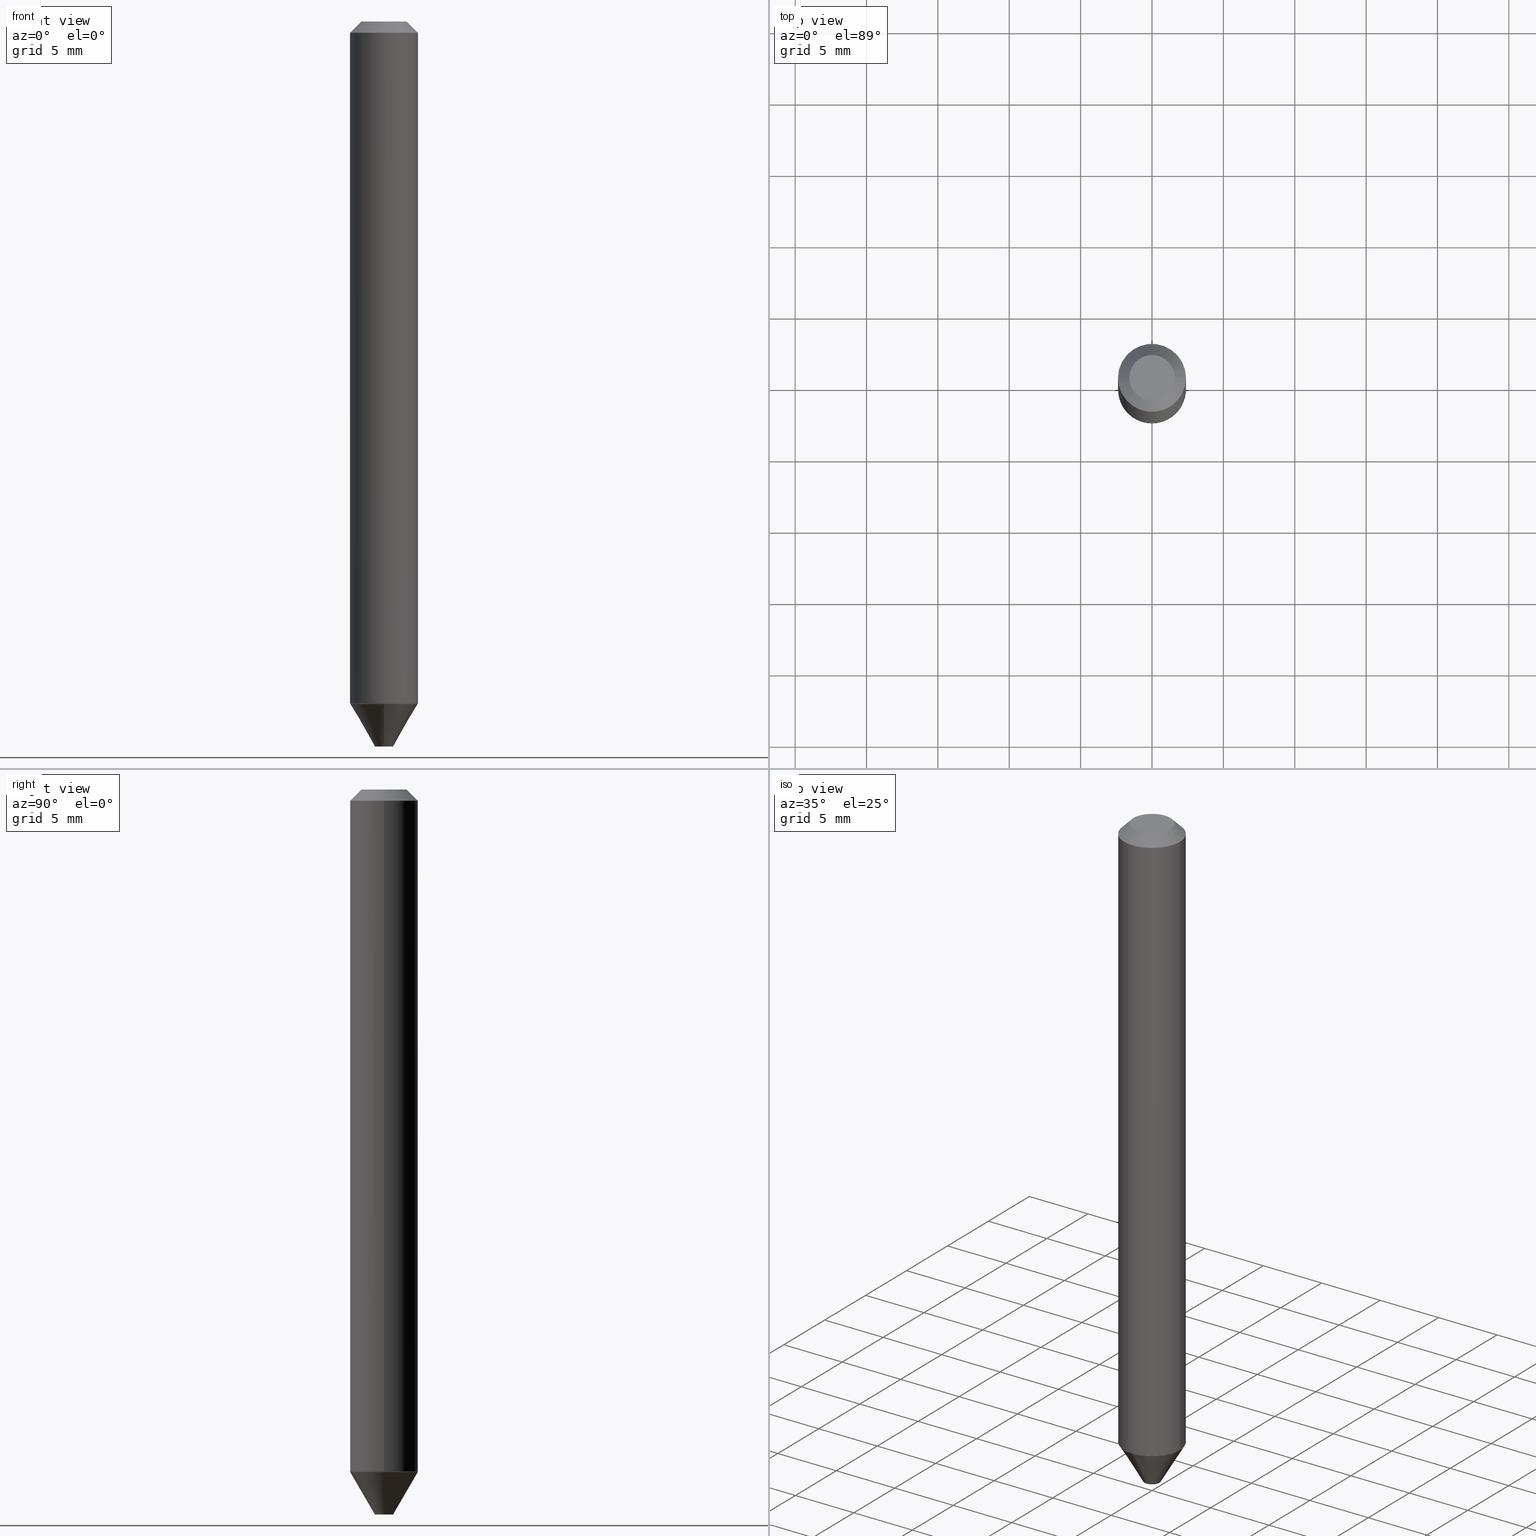
[diagram: canonical four-view strip — front | top / right | iso, engineering-drawing reading convention]
A machine part, canonical four-view strip (front | top / right | iso — engineering-drawing reading convention). The complete STEP part file that produces these views, byte-faithful:
ISO-10303-21;
HEADER;
FILE_DESCRIPTION (( 'STEP AP203' ),
    '1' );
FILE_NAME ('74028.STEP',
    '2025-06-20T12:14:24',
    ( '' ),
    ( '' ),
    'SwSTEP 2.0',
    'SolidWorks 2024',
    '' );
FILE_SCHEMA (( 'CONFIG_CONTROL_DESIGN' ));
ENDSEC;

DATA;
#1 = DIRECTION ( 'NONE',  ( 1.000000000000000000, -6.982962677686265922E-15, 4.876242311950516125E-29 ) ) ;
#2 = PLANE ( 'NONE',  #123 ) ;
#3 = DIRECTION ( 'NONE',  ( 2.445468806185136597E-29, -3.491481338843145583E-15, -1.000000000000000000 ) ) ;
#4 = AXIS2_PLACEMENT_3D ( 'NONE', #335, #190, #272 ) ;
#5 = CC_DESIGN_PERSON_AND_ORGANIZATION_ASSIGNMENT ( #21, #189, ( #392 ) ) ;
#6 = DIRECTION ( 'NONE',  ( 0.7071067811865452413, -7.319954787623248157E-15, -0.7071067811865497932 ) ) ;
#7 = ORIENTED_EDGE ( 'NONE', *, *, #80, .F. ) ;
#8 = CARTESIAN_POINT ( 'NONE',  ( 0.09375000000000001388, -7.522804791299300860E-16, -0.03125000000000020123 ) ) ;
#9 = ORIENTED_EDGE ( 'NONE', *, *, #106, .F. ) ;
#10 = ADVANCED_FACE ( 'NONE', ( #365 ), #125, .T. ) ;
#11 = ORIENTED_EDGE ( 'NONE', *, *, #120, .F. ) ;
#12 = AXIS2_PLACEMENT_3D ( 'NONE', #328, #48, #132 ) ;
#13 = APPROVAL_PERSON_ORGANIZATION ( #51, #321, #81 ) ;
#14 = APPLICATION_PROTOCOL_DEFINITION ( 'international standard', 'config_control_design', 1994, #101 ) ;
#15 = ORIENTED_EDGE ( 'NONE', *, *, #120, .T. ) ;
#16 = CARTESIAN_POINT ( 'NONE',  ( -0.09375000000000001388, 5.455439591942385021E-16, -0.03125000000000020123 ) ) ;
#17 = ORIENTED_EDGE ( 'NONE', *, *, #242, .F. ) ;
#18 = DATE_TIME_ROLE ( 'creation_date' ) ;
#19 = ORIENTED_EDGE ( 'NONE', *, *, #304, .F. ) ;
#20 = AXIS2_PLACEMENT_3D ( 'NONE', #122, #96, #252 ) ;
#21 = PERSON_AND_ORGANIZATION ( #329, #399 ) ;
#22 = AXIS2_PLACEMENT_3D ( 'NONE', #314, #93, #31 ) ;
#23 = DIRECTION ( 'NONE',  ( -2.445468806185136597E-29, 3.491481338843145583E-15, 1.000000000000000000 ) ) ;
#24 = DATE_AND_TIME ( #115, #345 ) ;
#25 = CARTESIAN_POINT ( 'NONE',  ( -0.09325000000000016609, -5.903717753847153175E-15, -1.881421506979639169 ) ) ;
#26 = EDGE_CURVE ( 'NONE', #82, #259, #405, .T. ) ;
#27 = COORDINATED_UNIVERSAL_TIME_OFFSET ( 5, 0, .BEHIND. ) ;
#28 = CARTESIAN_POINT ( 'NONE',  ( 0.06250000000000001388, -5.905308019953255522E-16, 3.827021247339070247E-18 ) ) ;
#29 = DIRECTION ( 'NONE',  ( -2.445468806185136597E-29, 3.491481338843145583E-15, 1.000000000000000000 ) ) ;
#30 = DIRECTION ( 'NONE',  ( 2.450229196497135613E-29, -3.484664188971772409E-15, -1.000000000000000000 ) ) ;
#31 = DIRECTION ( 'NONE',  ( 6.982962677686266711E-15, 1.000000000000000000, -2.913971193241879189E-15 ) ) ;
#32 = FACE_OUTER_BOUND ( 'NONE', #290, .T. ) ;
#33 = AXIS2_PLACEMENT_3D ( 'NONE', #131, #380, #230 ) ;
#34 = CARTESIAN_POINT ( 'NONE',  ( 4.602182721202787017E-29, -6.570690414212044123E-15, -1.881921506979639114 ) ) ;
#35 = PRODUCT_DEFINITION ( 'UNKNOWN', '', #124, #45 ) ;
#36 = CARTESIAN_POINT ( 'NONE',  ( 6.546527510331342441E-16, 0.09374999999999353295, -1.881921506979639336 ) ) ;
#37 = LENGTH_MEASURE_WITH_UNIT ( LENGTH_MEASURE( 0.02539999999999999897 ), #202 );
#38 = EDGE_LOOP ( 'NONE', ( #77, #49, #338, #100 ) ) ;
#39 = CLOSED_SHELL ( 'NONE', ( #378, #283, #297, #412, #219, #10 ) ) ;
#40 = CONICAL_SURFACE ( 'NONE', #33, 0.09375000000000001388, 0.7853981633974450594 ) ;
#41 = ADVANCED_FACE ( 'NONE', ( #410 ), #88, .T. ) ;
#42 = EDGE_LOOP ( 'NONE', ( #19, #360, #75, #89 ) ) ;
#43 = DIRECTION ( 'NONE',  ( 1.000000000000000000, -6.982962677686265922E-15, 4.876242311950516125E-29 ) ) ;
#44 = ORIENTED_EDGE ( 'NONE', *, *, #224, .T. ) ;
#45 = DESIGN_CONTEXT ( 'detailed design', #381, 'design' ) ;
#46 = PLANE ( 'NONE',  #72 ) ;
#47 = VERTEX_POINT ( 'NONE', #25 ) ;
#48 = DIRECTION ( 'NONE',  ( -2.450229196497135893E-29, 3.484664188971772015E-15, 1.000000000000000000 ) ) ;
#49 = ORIENTED_EDGE ( 'NONE', *, *, #372, .T. ) ;
#50 = ADVANCED_FACE ( 'NONE', ( #54 ), #390, .T. ) ;
#51 = PERSON_AND_ORGANIZATION ( #329, #399 ) ;
#52 = EDGE_LOOP ( 'NONE', ( #241, #299, #109, #222 ) ) ;
#53 = MECHANICAL_CONTEXT ( 'NONE', #101, 'mechanical' ) ;
#54 = FACE_OUTER_BOUND ( 'NONE', #393, .T. ) ;
#55 = AXIS2_PLACEMENT_3D ( 'NONE', #413, #199, #158 ) ;
#56 = LOCAL_TIME ( 8, 14, 24.00000000000000000, #27 ) ;
#57 = VECTOR ( 'NONE', #104, 39.37007874015748143 ) ;
#58 = CARTESIAN_POINT ( 'NONE',  ( -6.546527510330419474E-16, -0.09375000000000663358, -1.881921506979638670 ) ) ;
#59 = DIRECTION ( 'NONE',  ( -1.000000000000000000, 6.982962677686265922E-15, -4.876176775795935793E-29 ) ) ;
#60 = PERSON_AND_ORGANIZATION ( #329, #399 ) ;
#61 = ORIENTED_EDGE ( 'NONE', *, *, #211, .T. ) ;
#62 = APPROVAL_PERSON_ORGANIZATION ( #212, #265, #366 ) ;
#63 = CARTESIAN_POINT ( 'NONE',  ( 6.511612696942904481E-16, 0.09324999999999344924, -1.881421506979639169 ) ) ;
#64 = VECTOR ( 'NONE', #6, 39.37007874015748143 ) ;
#65 = DIRECTION ( 'NONE',  ( -6.982962677686265922E-15, -1.000000000000000000, 3.484664188971772015E-15 ) ) ;
#66 = CARTESIAN_POINT ( 'NONE',  ( 0.09375000000000011102, -6.546527510330881944E-16, 4.571415727308695411E-30 ) ) ;
#67 = CARTESIAN_POINT ( 'NONE',  ( -9.358861080966648015E-47, 1.336197326842804765E-32, 3.827021247335480313E-18 ) ) ;
#68 = AXIS2_PLACEMENT_3D ( 'NONE', #407, #157, #121 ) ;
#69 = CARTESIAN_POINT ( 'NONE',  ( 4.599734872201446388E-29, -6.567202341448137476E-15, -1.880921506979639224 ) ) ;
#70 = EDGE_CURVE ( 'NONE', #176, #341, #127, .T. ) ;
#71 =( NAMED_UNIT ( * ) PLANE_ANGLE_UNIT ( ) SI_UNIT ( $, .RADIAN. ) );
#72 = AXIS2_PLACEMENT_3D ( 'NONE', #78, #261, #170 ) ;
#73 = VERTEX_POINT ( 'NONE', #28 ) ;
#74 = AXIS2_PLACEMENT_3D ( 'NONE', #348, #3, #313 ) ;
#75 = ORIENTED_EDGE ( 'NONE', *, *, #276, .T. ) ;
#76 = CARTESIAN_POINT ( 'NONE',  ( -0.09375000000000011102, 6.661338147750947131E-16, -4.611501647113979600E-30 ) ) ;
#77 = ORIENTED_EDGE ( 'NONE', *, *, #106, .T. ) ;
#78 = CARTESIAN_POINT ( 'NONE',  ( -4.679430540483324007E-47, 6.680986634214023823E-33, 1.913510623667740157E-18 ) ) ;
#79 = ORIENTED_EDGE ( 'NONE', *, *, #333, .F. ) ;
#80 = EDGE_CURVE ( 'NONE', #47, #240, #248, .T. ) ;
#81 = APPROVAL_ROLE ( '' ) ;
#82 = VERTEX_POINT ( 'NONE', #150 ) ;
#83 = DIRECTION ( 'NONE',  ( 2.450229196497135613E-29, -3.484664188971772409E-15, -1.000000000000000000 ) ) ;
#84 = PERSON_AND_ORGANIZATION ( #329, #399 ) ;
#85 = ORIENTED_EDGE ( 'NONE', *, *, #372, .F. ) ;
#86 = CIRCLE ( 'NONE', #235, 0.09325000000000016609 ) ;
#87 = COORDINATED_UNIVERSAL_TIME_OFFSET ( 5, 0, .BEHIND. ) ;
#88 = CYLINDRICAL_SURFACE ( 'NONE', #148, 0.09375000000000011102 ) ;
#89 = ORIENTED_EDGE ( 'NONE', *, *, #224, .F. ) ;
#90 = EDGE_LOOP ( 'NONE', ( #395, #61, #213, #277 ) ) ;
#91 = DIRECTION ( 'NONE',  ( 2.450229196497135613E-29, -3.484664188971772409E-15, -1.000000000000000000 ) ) ;
#92 = VECTOR ( 'NONE', #126, 39.37007874015748143 ) ;
#93 = DIRECTION ( 'NONE',  ( 2.450229196497135613E-29, -3.484664188971772409E-15, -1.000000000000000000 ) ) ;
#94 = EDGE_CURVE ( 'NONE', #143, #262, #206, .T. ) ;
#95 = FACE_OUTER_BOUND ( 'NONE', #52, .T. ) ;
#96 = DIRECTION ( 'NONE',  ( -2.445468806185136597E-29, 3.491481338843145583E-15, 1.000000000000000000 ) ) ;
#97 = LOCAL_TIME ( 8, 14, 24.00000000000000000, #156 ) ;
#98 = DIRECTION ( 'NONE',  ( 2.450229196497135613E-29, -3.484664188971772409E-15, -1.000000000000000000 ) ) ;
#99 = CARTESIAN_POINT ( 'NONE',  ( 4.891502092279659447E-29, -6.982154310327850672E-15, -2.000000000000000444 ) ) ;
#100 = ORIENTED_EDGE ( 'NONE', *, *, #114, .F. ) ;
#101 = APPLICATION_CONTEXT ( 'configuration controlled 3d designs of mechanical parts and assemblies' ) ;
#102 = PLANE ( 'NONE',  #12 ) ;
#103 = CIRCLE ( 'NONE', #22, 0.09375000000000005551 ) ;
#104 = DIRECTION ( 'NONE',  ( -0.7071067811866561525, 7.493145998870747013E-15, 0.7071067811864388819 ) ) ;
#105 = ORIENTED_EDGE ( 'NONE', *, *, #327, .F. ) ;
#106 = EDGE_CURVE ( 'NONE', #240, #47, #86, .T. ) ;
#107 = CARTESIAN_POINT ( 'NONE',  ( -0.09375000000000020817, -5.901068526673041974E-15, -1.880921506979639224 ) ) ;
#108 = APPROVAL_DATE_TIME ( #24, #155 ) ;
#109 = ORIENTED_EDGE ( 'NONE', *, *, #193, .F. ) ;
#110 = CIRCLE ( 'NONE', #356, 0.06250000000000001388 ) ;
#111 = AXIS2_PLACEMENT_3D ( 'NONE', #274, #83, #275 ) ;
#112 = CALENDAR_DATE ( 2025, 20, 6 ) ;
#113 = DIRECTION ( 'NONE',  ( -2.445468806185136597E-29, 3.491481338843145583E-15, 1.000000000000000000 ) ) ;
#114 = EDGE_CURVE ( 'NONE', #240, #262, #220, .T. ) ;
#115 = CALENDAR_DATE ( 2025, 20, 6 ) ;
#116 = DIRECTION ( 'NONE',  ( 1.000000000000000000, -6.982962677686265922E-15, 0.000000000000000000 ) ) ;
#117 = CARTESIAN_POINT ( 'NONE',  ( 7.642090019328600035E-31, -1.091087918388489897E-16, -0.03125000000000020123 ) ) ;
#118 = APPROVAL_PERSON_ORGANIZATION ( #216, #155, #404 ) ;
#119 = ORIENTED_EDGE ( 'NONE', *, *, #287, .F. ) ;
#120 = EDGE_CURVE ( 'NONE', #332, #146, #225, .T. ) ;
#121 = DIRECTION ( 'NONE',  ( 1.000000000000000000, -6.982962677686265922E-15, 0.000000000000000000 ) ) ;
#122 = CARTESIAN_POINT ( 'NONE',  ( 4.599734872201446388E-29, -6.567202341448137476E-15, -1.880921506979639224 ) ) ;
#123 = AXIS2_PLACEMENT_3D ( 'NONE', #129, #257, #65 ) ;
#124 = PRODUCT_DEFINITION_FORMATION_WITH_SPECIFIED_SOURCE ( 'ANY', '', #406, .NOT_KNOWN. ) ;
#125 = CONICAL_SURFACE ( 'NONE', #4, 0.09375000000000005551, 0.5272581712179652547 ) ;
#126 = DIRECTION ( 'NONE',  ( -4.851104656540301632E-15, -0.7071067811864534258, -0.7071067811866416086 ) ) ;
#127 = CIRCLE ( 'NONE', #111, 0.09325000000000002731 ) ;
#128 = FACE_OUTER_BOUND ( 'NONE', #38, .T. ) ;
#129 = CARTESIAN_POINT ( 'NONE',  ( 4.890937612370273194E-29, -6.982962677686291165E-15, -2.000000000000000000 ) ) ;
#130 = ADVANCED_FACE ( 'NONE', ( #409 ), #250, .T. ) ;
#131 = CARTESIAN_POINT ( 'NONE',  ( 7.642090019328600035E-31, -1.091087918388489897E-16, -0.03125000000000020123 ) ) ;
#132 = DIRECTION ( 'NONE',  ( -6.982962677686265922E-15, -1.000000000000000000, 3.484664188971772015E-15 ) ) ;
#133 = CC_DESIGN_PERSON_AND_ORGANIZATION_ASSIGNMENT ( #153, #331, ( #124 ) ) ;
#134 = ORIENTED_EDGE ( 'NONE', *, *, #172, .T. ) ;
#135 = FACE_OUTER_BOUND ( 'NONE', #233, .T. ) ;
#136 = ORIENTED_EDGE ( 'NONE', *, *, #260, .T. ) ;
#137 = AXIS2_PLACEMENT_3D ( 'NONE', #264, #98, #324 ) ;
#138 = EDGE_LOOP ( 'NONE', ( #9, #7 ) ) ;
#139 = ADVANCED_FACE ( 'NONE', ( #187 ), #278, .T. ) ;
#140 = DIRECTION ( 'NONE',  ( -2.445468806185136597E-29, 3.491481338843145583E-15, 1.000000000000000000 ) ) ;
#141 = ORIENTED_EDGE ( 'NONE', *, *, #364, .T. ) ;
#142 = CARTESIAN_POINT ( 'NONE',  ( 4.218847493576065508E-16, 0.02499999999999288555, -2.000000000000000444 ) ) ;
#143 = VERTEX_POINT ( 'NONE', #164 ) ;
#144 = CALENDAR_DATE ( 2025, 20, 6 ) ;
#145 = EDGE_CURVE ( 'NONE', #341, #259, #194, .T. ) ;
#146 = VERTEX_POINT ( 'NONE', #229 ) ;
#147 = AXIS2_PLACEMENT_3D ( 'NONE', #339, #308, #59 ) ;
#148 = AXIS2_PLACEMENT_3D ( 'NONE', #306, #29, #402 ) ;
#149 = DATE_AND_TIME ( #112, #311 ) ;
#150 = CARTESIAN_POINT ( 'NONE',  ( -4.146134089875742612E-16, -0.02500000000000685355, -2.000000000000000444 ) ) ;
#151 = DATE_AND_TIME ( #144, #97 ) ;
#152 = ORIENTED_EDGE ( 'NONE', *, *, #304, .T. ) ;
#153 = PERSON_AND_ORGANIZATION ( #329, #399 ) ;
#154 = DIRECTION ( 'NONE',  ( 0.7071067811866561525, -2.468850131083394598E-15, 0.7071067811864388819 ) ) ;
#155 = APPROVAL ( #334, 'UNSPECIFIED' ) ;
#156 = COORDINATED_UNIVERSAL_TIME_OFFSET ( 5, 0, .BEHIND. ) ;
#157 = DIRECTION ( 'NONE',  ( -2.445468806185136597E-29, 3.491481338843145583E-15, 1.000000000000000000 ) ) ;
#158 = DIRECTION ( 'NONE',  ( 1.000000000000000000, -6.982962677686265922E-15, 4.876176775795935793E-29 ) ) ;
#159 = DIRECTION ( 'NONE',  ( 1.000000000000000000, -6.982962677686268288E-15, 0.000000000000000000 ) ) ;
#160 = EDGE_CURVE ( 'NONE', #323, #82, #401, .T. ) ;
#161 = CONICAL_SURFACE ( 'NONE', #137, 0.09325000000000002731, 0.7853981633973118326 ) ;
#162 =( GEOMETRIC_REPRESENTATION_CONTEXT ( 3 ) GLOBAL_UNCERTAINTY_ASSIGNED_CONTEXT ( ( #352 ) ) GLOBAL_UNIT_ASSIGNED_CONTEXT ( ( #167, #71, #357 ) ) REPRESENTATION_CONTEXT ( 'NONE', 'WORKASPACE' ) );
#163 = DIRECTION ( 'NONE',  ( -2.445468806185136877E-29, 3.491481338843145188E-15, 1.000000000000000000 ) ) ;
#164 = CARTESIAN_POINT ( 'NONE',  ( -0.09375000000000020817, -5.901068526673041974E-15, -1.880921506979639224 ) ) ;
#165 = CARTESIAN_POINT ( 'NONE',  ( 0.09375000000000020817, -7.221855092481226558E-15, -1.880921506979639224 ) ) ;
#166 = VECTOR ( 'NONE', #347, 39.37007874015747433 ) ;
#167 =( CONVERSION_BASED_UNIT ( 'INCH', #37 ) LENGTH_UNIT ( ) NAMED_UNIT ( #173 ) );
#168 = CC_DESIGN_APPROVAL ( #321, ( #392 ) ) ;
#169 = DIRECTION ( 'NONE',  ( -2.445468806185136877E-29, 3.491481338843145188E-15, 1.000000000000000000 ) ) ;
#170 = DIRECTION ( 'NONE',  ( -1.000000000000000000, 6.982962677686265922E-15, -4.876176775795935793E-29 ) ) ;
#171 = ORIENTED_EDGE ( 'NONE', *, *, #188, .T. ) ;
#172 = EDGE_CURVE ( 'NONE', #180, #73, #344, .T. ) ;
#173 = DIMENSIONAL_EXPONENTS ( 1.000000000000000000, 0.000000000000000000, 0.000000000000000000, 0.000000000000000000, 0.000000000000000000, 0.000000000000000000, 0.000000000000000000 ) ;
#174 = CARTESIAN_POINT ( 'NONE',  ( -6.414565627915923777E-16, -0.09325000000000659151, -1.881421506979638503 ) ) ;
#175 = LOCAL_TIME ( 8, 14, 24.00000000000000000, #214 ) ;
#176 = VERTEX_POINT ( 'NONE', #63 ) ;
#177 = EDGE_LOOP ( 'NONE', ( #292, #136, #353, #17 ) ) ;
#178 = APPROVAL_DATE_TIME ( #149, #321 ) ;
#179 = ORIENTED_EDGE ( 'NONE', *, *, #260, .F. ) ;
#180 = VERTEX_POINT ( 'NONE', #317 ) ;
#181 = AXIS2_PLACEMENT_3D ( 'NONE', #117, #367, #370 ) ;
#182 = AXIS2_PLACEMENT_3D ( 'NONE', #263, #238, #245 ) ;
#183 = CIRCLE ( 'NONE', #294, 0.09375000000000001388 ) ;
#184 = CALENDAR_DATE ( 2025, 20, 6 ) ;
#185 = EDGE_LOOP ( 'NONE', ( #134, #363 ) ) ;
#186 = DATE_AND_TIME ( #184, #56 ) ;
#187 = FACE_OUTER_BOUND ( 'NONE', #205, .T. ) ;
#188 = EDGE_CURVE ( 'NONE', #262, #143, #377, .T. ) ;
#189 = PERSON_AND_ORGANIZATION_ROLE ( 'classification_officer' ) ;
#190 = DIRECTION ( 'NONE',  ( -2.450229196497135613E-29, 3.484664188971772409E-15, 1.000000000000000000 ) ) ;
#191 = CLOSED_SHELL ( 'NONE', ( #273, #139, #256, #130, #50, #41, #234, #359 ) ) ;
#192 = DIRECTION ( 'NONE',  ( -2.445468806185136597E-29, 3.491481338843145583E-15, 1.000000000000000000 ) ) ;
#193 = EDGE_CURVE ( 'NONE', #269, #259, #280, .T. ) ;
#194 = LINE ( 'NONE', #226, #92 ) ;
#195 = MANIFOLD_SOLID_BREP ( 'Body-Move/Copy2[1]', #39 ) ;
#196 = CARTESIAN_POINT ( 'NONE',  ( 4.891502092279659447E-29, -6.982154310327850672E-15, -2.000000000000000444 ) ) ;
#197 = MANIFOLD_SOLID_BREP ( 'Body-Move/Copy2[2]', #191 ) ;
#198 = CONICAL_SURFACE ( 'NONE', #253, 0.09375000000000020817, 0.7853981633976019339 ) ;
#199 = DIRECTION ( 'NONE',  ( -2.445468806185136597E-29, 3.491481338843145583E-15, 1.000000000000000000 ) ) ;
#200 = ADVANCED_BREP_SHAPE_REPRESENTATION ( '74028', ( #195, #197, #182 ), #162 ) ;
#201 = FACE_OUTER_BOUND ( 'NONE', #397, .T. ) ;
#202 =( LENGTH_UNIT ( ) NAMED_UNIT ( * ) SI_UNIT ( $, .METRE. ) );
#203 = AXIS2_PLACEMENT_3D ( 'NONE', #343, #376, #1 ) ;
#204 = LINE ( 'NONE', #8, #64 ) ;
#205 = EDGE_LOOP ( 'NONE', ( #171, #152, #11, #210 ) ) ;
#206 = CIRCLE ( 'NONE', #286, 0.09375000000000020817 ) ;
#207 = CARTESIAN_POINT ( 'NONE',  ( 0.09375000000000001388, -7.637615428719365062E-16, -0.03125000000000020123 ) ) ;
#208 = ORIENTED_EDGE ( 'NONE', *, *, #242, .T. ) ;
#209 = DIRECTION ( 'NONE',  ( -6.982962677686266711E-15, -1.000000000000000000, 2.913971193241879189E-15 ) ) ;
#210 = ORIENTED_EDGE ( 'NONE', *, *, #276, .F. ) ;
#211 = EDGE_CURVE ( 'NONE', #323, #269, #315, .T. ) ;
#212 = PERSON_AND_ORGANIZATION ( #329, #399 ) ;
#213 = ORIENTED_EDGE ( 'NONE', *, *, #193, .T. ) ;
#214 = COORDINATED_UNIVERSAL_TIME_OFFSET ( 5, 0, .BEHIND. ) ;
#215 = CARTESIAN_POINT ( 'NONE',  ( 4.599734872201446388E-29, -6.567202341448137476E-15, -1.880921506979639224 ) ) ;
#216 = PERSON_AND_ORGANIZATION ( #329, #399 ) ;
#217 = ORIENTED_EDGE ( 'NONE', *, *, #70, .F. ) ;
#218 = AXIS2_PLACEMENT_3D ( 'NONE', #34, #91, #279 ) ;
#219 = ADVANCED_FACE ( 'NONE', ( #32 ), #2, .F. ) ;
#220 = LINE ( 'NONE', #246, #322 ) ;
#221 = PERSON_AND_ORGANIZATION_ROLE ( 'creator' ) ;
#222 = ORIENTED_EDGE ( 'NONE', *, *, #391, .F. ) ;
#223 = LINE ( 'NONE', #66, #369 ) ;
#224 = EDGE_CURVE ( 'NONE', #146, #332, #183, .T. ) ;
#225 = CIRCLE ( 'NONE', #181, 0.09375000000000001388 ) ;
#226 = CARTESIAN_POINT ( 'NONE',  ( -6.397414382921493268E-16, -0.09325000000000659151, -1.881421506979638503 ) ) ;
#227 = PRODUCT_DEFINITION_SHAPE ( 'NONE', 'NONE',  #35 ) ;
#228 = CARTESIAN_POINT ( 'NONE',  ( 4.600957606604537508E-29, -6.568948082117558191E-15, -1.881421506979638947 ) ) ;
#229 = CARTESIAN_POINT ( 'NONE',  ( -0.09375000000000001388, -2.672021751868397392E-15, -0.03125000000000020123 ) ) ;
#230 = DIRECTION ( 'NONE',  ( -1.000000000000000000, 6.982962677686265922E-15, 0.000000000000000000 ) ) ;
#231 = CC_DESIGN_PERSON_AND_ORGANIZATION_ASSIGNMENT ( #368, #221, ( #35 ) ) ;
#232 = LINE ( 'NONE', #351, #354 ) ;
#233 = EDGE_LOOP ( 'NONE', ( #217, #179 ) ) ;
#234 = ADVANCED_FACE ( 'NONE', ( #201 ), #40, .T. ) ;
#235 = AXIS2_PLACEMENT_3D ( 'NONE', #305, #23, #116 ) ;
#236 = ORIENTED_EDGE ( 'NONE', *, *, #114, .T. ) ;
#237 = VECTOR ( 'NONE', #394, 39.37007874015748143 ) ;
#238 = DIRECTION ( 'NONE',  ( 0.000000000000000000, 0.000000000000000000, 1.000000000000000000 ) ) ;
#239 = DIRECTION ( 'NONE',  ( 4.937700262163873566E-15, 0.7071067811864485408, -0.7071067811866464936 ) ) ;
#240 = VERTEX_POINT ( 'NONE', #349 ) ;
#241 = ORIENTED_EDGE ( 'NONE', *, *, #70, .T. ) ;
#242 = EDGE_CURVE ( 'NONE', #259, #269, #103, .T. ) ;
#243 = APPROVAL_STATUS ( 'not_yet_approved' ) ;
#244 = DIRECTION ( 'NONE',  ( -2.445468806185136597E-29, 3.491481338843145583E-15, 1.000000000000000000 ) ) ;
#245 = DIRECTION ( 'NONE',  ( 1.000000000000000000, 0.000000000000000000, 0.000000000000000000 ) ) ;
#246 = CARTESIAN_POINT ( 'NONE',  ( 0.09375000000000020817, -7.221855092481226558E-15, -1.880921506979639224 ) ) ;
#247 = DIRECTION ( 'NONE',  ( 1.000000000000000000, -6.982962677686268288E-15, 0.000000000000000000 ) ) ;
#248 = CIRCLE ( 'NONE', #68, 0.09325000000000016609 ) ;
#249 = PERSON_AND_ORGANIZATION_ROLE ( 'design_owner' ) ;
#250 = PLANE ( 'NONE',  #147 ) ;
#251 = DIRECTION ( 'NONE',  ( 1.000000000000000000, -6.982962677686268288E-15, 0.000000000000000000 ) ) ;
#252 = DIRECTION ( 'NONE',  ( 1.000000000000000000, -6.982962677686268288E-15, 0.000000000000000000 ) ) ;
#253 = AXIS2_PLACEMENT_3D ( 'NONE', #69, #384, #159 ) ;
#254 = CARTESIAN_POINT ( 'NONE',  ( -6.431716872910350342E-16, -0.09375000000000657807, -1.881921506979638670 ) ) ;
#255 = DIRECTION ( 'NONE',  ( 2.450229196497135613E-29, -3.484664188971772409E-15, -1.000000000000000000 ) ) ;
#256 = ADVANCED_FACE ( 'NONE', ( #128 ), #198, .T. ) ;
#257 = DIRECTION ( 'NONE',  ( -2.450229196497135893E-29, 3.484664188971772015E-15, 1.000000000000000000 ) ) ;
#258 = DIRECTION ( 'NONE',  ( 6.982962677686265922E-15, 1.000000000000000000, -2.929595703661407273E-15 ) ) ;
#259 = VERTEX_POINT ( 'NONE', #254 ) ;
#260 = EDGE_CURVE ( 'NONE', #341, #176, #320, .T. ) ;
#261 = DIRECTION ( 'NONE',  ( 2.438088387897960049E-29, -3.491481338843145188E-15, -1.000000000000000000 ) ) ;
#262 = VERTEX_POINT ( 'NONE', #165 ) ;
#263 = CARTESIAN_POINT ( 'NONE',  ( 0.000000000000000000, 0.000000000000000000, 0.000000000000000000 ) ) ;
#264 = CARTESIAN_POINT ( 'NONE',  ( 4.600957606604537508E-29, -6.568948082117558191E-15, -1.881421506979638947 ) ) ;
#265 = APPROVAL ( #371, 'UNSPECIFIED' ) ;
#266 = FACE_OUTER_BOUND ( 'NONE', #90, .T. ) ;
#267 = ORIENTED_EDGE ( 'NONE', *, *, #333, .T. ) ;
#268 = CONICAL_SURFACE ( 'NONE', #303, 0.09375000000000005551, 0.5272581712179652547 ) ;
#269 = VERTEX_POINT ( 'NONE', #36 ) ;
#270 = AXIS2_PLACEMENT_3D ( 'NONE', #282, #255, #382 ) ;
#271 = CALENDAR_DATE ( 2025, 20, 6 ) ;
#272 = DIRECTION ( 'NONE',  ( -6.982962677686266711E-15, -1.000000000000000000, 2.913971193241879189E-15 ) ) ;
#273 = ADVANCED_FACE ( 'NONE', ( #285 ), #316, .T. ) ;
#274 = CARTESIAN_POINT ( 'NONE',  ( 4.600957606604537508E-29, -6.568948082117558191E-15, -1.881421506979638947 ) ) ;
#275 = DIRECTION ( 'NONE',  ( 6.982962677686265922E-15, 1.000000000000000000, -2.929595703661407273E-15 ) ) ;
#276 = EDGE_CURVE ( 'NONE', #262, #332, #223, .T. ) ;
#277 = ORIENTED_EDGE ( 'NONE', *, *, #26, .F. ) ;
#278 = CYLINDRICAL_SURFACE ( 'NONE', #55, 0.09375000000000011102 ) ;
#279 = DIRECTION ( 'NONE',  ( 6.982962677686266711E-15, 1.000000000000000000, -2.913971193241879189E-15 ) ) ;
#280 = CIRCLE ( 'NONE', #218, 0.09375000000000005551 ) ;
#281 = CC_DESIGN_APPROVAL ( #155, ( #124 ) ) ;
#282 = CARTESIAN_POINT ( 'NONE',  ( 4.600957606604537508E-29, -6.568948082117558191E-15, -1.881421506979638947 ) ) ;
#283 = ADVANCED_FACE ( 'NONE', ( #95 ), #398, .T. ) ;
#284 = CARTESIAN_POINT ( 'NONE',  ( 6.661338147751401712E-16, 0.09374999999999349132, -1.881921506979639336 ) ) ;
#285 = FACE_OUTER_BOUND ( 'NONE', #362, .T. ) ;
#286 = AXIS2_PLACEMENT_3D ( 'NONE', #215, #113, #251 ) ;
#287 = EDGE_CURVE ( 'NONE', #73, #180, #110, .T. ) ;
#288 = AXIS2_PLACEMENT_3D ( 'NONE', #228, #318, #258 ) ;
#289 = LINE ( 'NONE', #76, #416 ) ;
#290 = EDGE_LOOP ( 'NONE', ( #267, #374 ) ) ;
#291 = FACE_OUTER_BOUND ( 'NONE', #185, .T. ) ;
#292 = ORIENTED_EDGE ( 'NONE', *, *, #145, .F. ) ;
#293 = ORIENTED_EDGE ( 'NONE', *, *, #327, .T. ) ;
#294 = AXIS2_PLACEMENT_3D ( 'NONE', #350, #192, #383 ) ;
#295 = LINE ( 'NONE', #107, #57 ) ;
#296 = EDGE_LOOP ( 'NONE', ( #310, #79, #330, #208 ) ) ;
#297 = ADVANCED_FACE ( 'NONE', ( #386 ), #161, .T. ) ;
#298 = LINE ( 'NONE', #16, #237 ) ;
#299 = ORIENTED_EDGE ( 'NONE', *, *, #145, .T. ) ;
#300 = APPLICATION_PROTOCOL_DEFINITION ( 'international standard', 'config_control_design', 1994, #381 ) ;
#301 = DIRECTION ( 'NONE',  ( -3.513587825459242834E-15, -0.5031657747057287633, 0.8641899115152779087 ) ) ;
#302 = SECURITY_CLASSIFICATION_LEVEL ( 'unclassified' ) ;
#303 = AXIS2_PLACEMENT_3D ( 'NONE', #319, #388, #209 ) ;
#304 = EDGE_CURVE ( 'NONE', #143, #146, #289, .T. ) ;
#305 = CARTESIAN_POINT ( 'NONE',  ( 4.600957606604538629E-29, -6.568948082117558979E-15, -1.881421506979639169 ) ) ;
#306 = CARTESIAN_POINT ( 'NONE',  ( 0.000000000000000000, 0.000000000000000000, 0.000000000000000000 ) ) ;
#307 = DATE_AND_TIME ( #271, #175 ) ;
#308 = DIRECTION ( 'NONE',  ( 2.438088387897960049E-29, -3.491481338843145188E-15, -1.000000000000000000 ) ) ;
#309 = DATE_TIME_ROLE ( 'classification_date' ) ;
#310 = ORIENTED_EDGE ( 'NONE', *, *, #211, .F. ) ;
#311 = LOCAL_TIME ( 8, 14, 24.00000000000000000, #87 ) ;
#312 = CC_DESIGN_PERSON_AND_ORGANIZATION_ASSIGNMENT ( #60, #336, ( #124 ) ) ;
#313 = DIRECTION ( 'NONE',  ( -1.000000000000000000, 6.982962677686265922E-15, 0.000000000000000000 ) ) ;
#314 = CARTESIAN_POINT ( 'NONE',  ( 4.602182721202787017E-29, -6.570690414212044123E-15, -1.881921506979639114 ) ) ;
#315 = LINE ( 'NONE', #284, #166 ) ;
#316 = CONICAL_SURFACE ( 'NONE', #74, 0.09375000000000001388, 0.7853981633974450594 ) ;
#317 = CARTESIAN_POINT ( 'NONE',  ( -0.06250000000000001388, 4.909895632748152337E-16, 3.827021247332237047E-18 ) ) ;
#318 = DIRECTION ( 'NONE',  ( 2.450229196497135613E-29, -3.484664188971772409E-15, -1.000000000000000000 ) ) ;
#319 = CARTESIAN_POINT ( 'NONE',  ( 4.602182721202787017E-29, -6.570690414212044123E-15, -1.881921506979639114 ) ) ;
#320 = CIRCLE ( 'NONE', #288, 0.09325000000000002731 ) ;
#321 = APPROVAL ( #243, 'UNSPECIFIED' ) ;
#322 = VECTOR ( 'NONE', #154, 39.37007874015748143 ) ;
#323 = VERTEX_POINT ( 'NONE', #142 ) ;
#324 = DIRECTION ( 'NONE',  ( 6.982962677686265922E-15, 1.000000000000000000, -2.929595703661407273E-15 ) ) ;
#325 = DIRECTION ( 'NONE',  ( 2.450229196497135613E-29, -3.484664188971772409E-15, -1.000000000000000000 ) ) ;
#326 = ORIENTED_EDGE ( 'NONE', *, *, #80, .T. ) ;
#327 = EDGE_CURVE ( 'NONE', #180, #146, #298, .T. ) ;
#328 = CARTESIAN_POINT ( 'NONE',  ( 4.600957606604538629E-29, -6.568948082117558979E-15, -1.881421506979639169 ) ) ;
#329 = PERSON ( 'UNSPECIFIED', 'UNSPECIFIED', 'UNSPECIFIED', ('UNSPECIFIED'), ('UNSPECIFIED'), ('UNSPECIFIED') ) ;
#330 = ORIENTED_EDGE ( 'NONE', *, *, #26, .T. ) ;
#331 = PERSON_AND_ORGANIZATION_ROLE ( 'design_supplier' ) ;
#332 = VERTEX_POINT ( 'NONE', #207 ) ;
#333 = EDGE_CURVE ( 'NONE', #82, #323, #337, .T. ) ;
#334 = APPROVAL_STATUS ( 'not_yet_approved' ) ;
#335 = CARTESIAN_POINT ( 'NONE',  ( 4.602182721202787017E-29, -6.570690414212044123E-15, -1.881921506979639114 ) ) ;
#336 = PERSON_AND_ORGANIZATION_ROLE ( 'creator' ) ;
#337 = CIRCLE ( 'NONE', #346, 0.02499999999999986955 ) ;
#338 = ORIENTED_EDGE ( 'NONE', *, *, #188, .F. ) ;
#339 = CARTESIAN_POINT ( 'NONE',  ( 4.600957606604538629E-29, -6.568948082117558979E-15, -1.881421506979639169 ) ) ;
#340 = COORDINATED_UNIVERSAL_TIME_OFFSET ( 5, 0, .BEHIND. ) ;
#341 = VERTEX_POINT ( 'NONE', #174 ) ;
#342 = CC_DESIGN_PERSON_AND_ORGANIZATION_ASSIGNMENT ( #84, #249, ( #406 ) ) ;
#343 = CARTESIAN_POINT ( 'NONE',  ( -9.358861080966648015E-47, 1.336197326842804765E-32, 3.827021247335480313E-18 ) ) ;
#344 = CIRCLE ( 'NONE', #203, 0.06250000000000001388 ) ;
#345 = LOCAL_TIME ( 8, 14, 24.00000000000000000, #340 ) ;
#346 = AXIS2_PLACEMENT_3D ( 'NONE', #99, #325, #361 ) ;
#347 = DIRECTION ( 'NONE',  ( 3.575207861002587345E-15, 0.5031657747057348695, 0.8641899115152744670 ) ) ;
#348 = CARTESIAN_POINT ( 'NONE',  ( 7.642090019328600035E-31, -1.091087918388489897E-16, -0.03125000000000020123 ) ) ;
#349 = CARTESIAN_POINT ( 'NONE',  ( 0.09325000000000016609, -7.220109351811804265E-15, -1.881421506979639169 ) ) ;
#350 = CARTESIAN_POINT ( 'NONE',  ( 7.642090019328600035E-31, -1.091087918388489897E-16, -0.03125000000000020123 ) ) ;
#351 = CARTESIAN_POINT ( 'NONE',  ( 6.511612696942904481E-16, 0.09324999999999344924, -1.881421506979639169 ) ) ;
#352 = UNCERTAINTY_MEASURE_WITH_UNIT (LENGTH_MEASURE( 1.000000000000000082E-05 ), #167, 'distance_accuracy_value', 'NONE');
#353 = ORIENTED_EDGE ( 'NONE', *, *, #391, .T. ) ;
#354 = VECTOR ( 'NONE', #239, 39.37007874015748143 ) ;
#355 = VECTOR ( 'NONE', #301, 39.37007874015748143 ) ;
#356 = AXIS2_PLACEMENT_3D ( 'NONE', #67, #140, #43 ) ;
#357 =( NAMED_UNIT ( * ) SI_UNIT ( $, .STERADIAN. ) SOLID_ANGLE_UNIT ( ) );
#358 = ORIENTED_EDGE ( 'NONE', *, *, #172, .F. ) ;
#359 = ADVANCED_FACE ( 'NONE', ( #291 ), #46, .F. ) ;
#360 = ORIENTED_EDGE ( 'NONE', *, *, #94, .T. ) ;
#361 = DIRECTION ( 'NONE',  ( 6.982962677686265922E-15, 1.000000000000000000, 0.000000000000000000 ) ) ;
#362 = EDGE_LOOP ( 'NONE', ( #119, #141, #15, #105 ) ) ;
#363 = ORIENTED_EDGE ( 'NONE', *, *, #287, .T. ) ;
#364 = EDGE_CURVE ( 'NONE', #73, #332, #204, .T. ) ;
#365 = FACE_OUTER_BOUND ( 'NONE', #296, .T. ) ;
#366 = APPROVAL_ROLE ( '' ) ;
#367 = DIRECTION ( 'NONE',  ( -2.445468806185136597E-29, 3.491481338843145583E-15, 1.000000000000000000 ) ) ;
#368 = PERSON_AND_ORGANIZATION ( #329, #399 ) ;
#369 = VECTOR ( 'NONE', #163, 39.37007874015748143 ) ;
#370 = DIRECTION ( 'NONE',  ( 1.000000000000000000, -6.982962677686265922E-15, 0.000000000000000000 ) ) ;
#371 = APPROVAL_STATUS ( 'not_yet_approved' ) ;
#372 = EDGE_CURVE ( 'NONE', #47, #143, #295, .T. ) ;
#373 = CARTESIAN_POINT ( 'NONE',  ( 4.599734872201446388E-29, -6.567202341448137476E-15, -1.880921506979639224 ) ) ;
#374 = ORIENTED_EDGE ( 'NONE', *, *, #160, .T. ) ;
#375 = PRODUCT_RELATED_PRODUCT_CATEGORY ( 'detail', '', ( #406 ) ) ;
#376 = DIRECTION ( 'NONE',  ( -2.445468806185136597E-29, 3.491481338843145583E-15, 1.000000000000000000 ) ) ;
#377 = CIRCLE ( 'NONE', #20, 0.09375000000000020817 ) ;
#378 = ADVANCED_FACE ( 'NONE', ( #266 ), #268, .T. ) ;
#379 = AXIS2_PLACEMENT_3D ( 'NONE', #196, #30, #411 ) ;
#380 = DIRECTION ( 'NONE',  ( 2.445468806185136597E-29, -3.491481338843145583E-15, -1.000000000000000000 ) ) ;
#381 = APPLICATION_CONTEXT ( 'configuration controlled 3d designs of mechanical parts and assemblies' ) ;
#382 = DIRECTION ( 'NONE',  ( 6.982962677686265922E-15, 1.000000000000000000, -2.929595703661407273E-15 ) ) ;
#383 = DIRECTION ( 'NONE',  ( 1.000000000000000000, -6.982962677686265922E-15, 0.000000000000000000 ) ) ;
#384 = DIRECTION ( 'NONE',  ( -2.445468806185136597E-29, 3.491481338843145583E-15, 1.000000000000000000 ) ) ;
#385 = CC_DESIGN_DATE_AND_TIME_ASSIGNMENT ( #307, #18, ( #35 ) ) ;
#386 = FACE_OUTER_BOUND ( 'NONE', #177, .T. ) ;
#387 = ORIENTED_EDGE ( 'NONE', *, *, #364, .F. ) ;
#388 = DIRECTION ( 'NONE',  ( -2.450229196497135613E-29, 3.484664188971772409E-15, 1.000000000000000000 ) ) ;
#389 = ORIENTED_EDGE ( 'NONE', *, *, #94, .F. ) ;
#390 = CONICAL_SURFACE ( 'NONE', #414, 0.09375000000000020817, 0.7853981633976019339 ) ;
#391 = EDGE_CURVE ( 'NONE', #176, #269, #232, .T. ) ;
#392 = SECURITY_CLASSIFICATION ( '', '', #302 ) ;
#393 = EDGE_LOOP ( 'NONE', ( #85, #326, #236, #389 ) ) ;
#394 = DIRECTION ( 'NONE',  ( -0.7071067811865452413, 2.468850131082233000E-15, -0.7071067811865497932 ) ) ;
#395 = ORIENTED_EDGE ( 'NONE', *, *, #160, .F. ) ;
#396 = SHAPE_DEFINITION_REPRESENTATION ( #227, #200 ) ;
#397 = EDGE_LOOP ( 'NONE', ( #387, #358, #293, #44 ) ) ;
#398 = CONICAL_SURFACE ( 'NONE', #270, 0.09325000000000002731, 0.7853981633973118326 ) ;
#399 = ORGANIZATION ( 'UNSPECIFIED', 'UNSPECIFIED', '' ) ;
#400 = APPROVAL_DATE_TIME ( #186, #265 ) ;
#401 = CIRCLE ( 'NONE', #379, 0.02499999999999986955 ) ;
#402 = DIRECTION ( 'NONE',  ( 1.000000000000000000, -6.982962677686265922E-15, 4.876176775795935793E-29 ) ) ;
#403 = CC_DESIGN_DATE_AND_TIME_ASSIGNMENT ( #151, #309, ( #392 ) ) ;
#404 = APPROVAL_ROLE ( '' ) ;
#405 = LINE ( 'NONE', #58, #355 ) ;
#406 = PRODUCT ( '74028', '74028', '', ( #53 ) ) ;
#407 = CARTESIAN_POINT ( 'NONE',  ( 4.600957606604538629E-29, -6.568948082117558979E-15, -1.881421506979639169 ) ) ;
#408 = CC_DESIGN_SECURITY_CLASSIFICATION ( #392, ( #124 ) ) ;
#409 = FACE_OUTER_BOUND ( 'NONE', #138, .T. ) ;
#410 = FACE_OUTER_BOUND ( 'NONE', #42, .T. ) ;
#411 = DIRECTION ( 'NONE',  ( 6.982962677686265922E-15, 1.000000000000000000, 0.000000000000000000 ) ) ;
#412 = ADVANCED_FACE ( 'NONE', ( #135 ), #102, .T. ) ;
#413 = CARTESIAN_POINT ( 'NONE',  ( 0.000000000000000000, 0.000000000000000000, 0.000000000000000000 ) ) ;
#414 = AXIS2_PLACEMENT_3D ( 'NONE', #373, #244, #247 ) ;
#415 = CC_DESIGN_APPROVAL ( #265, ( #35 ) ) ;
#416 = VECTOR ( 'NONE', #169, 39.37007874015748143 ) ;
ENDSEC;
END-ISO-10303-21;
